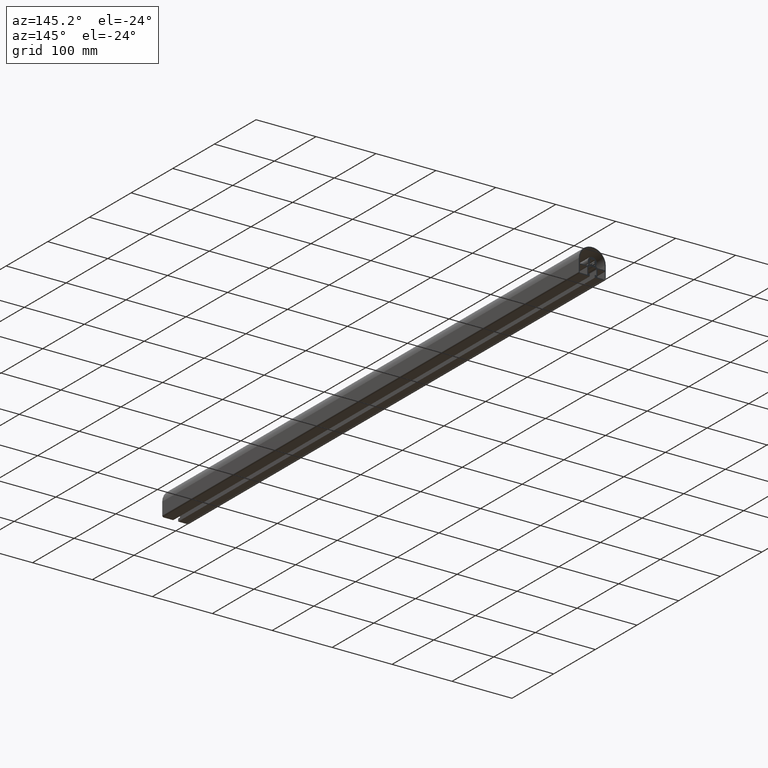
[diagram: clean part render]
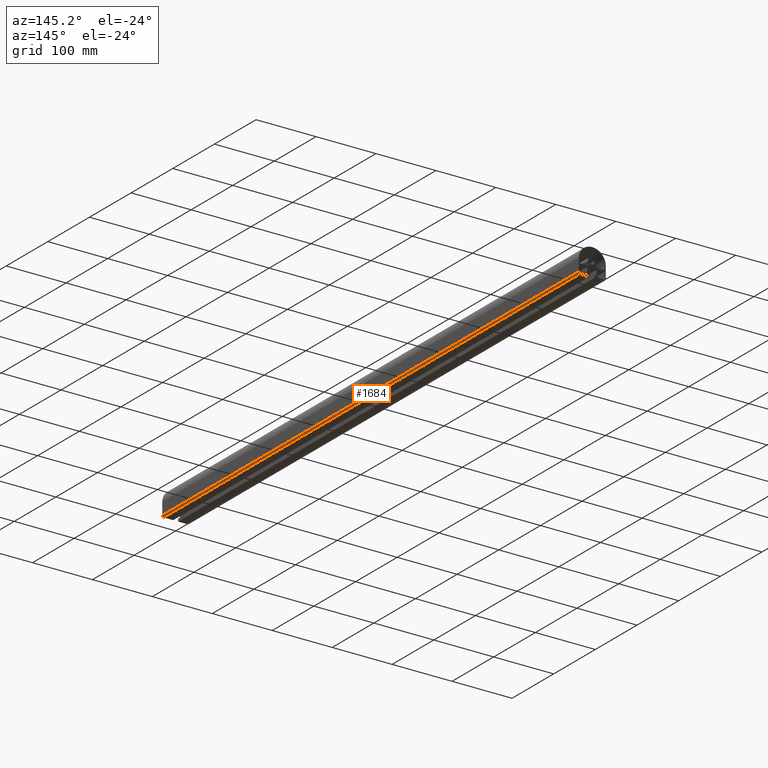
[diagram: same view with one face highlighted and labeled with its STEP entity id]
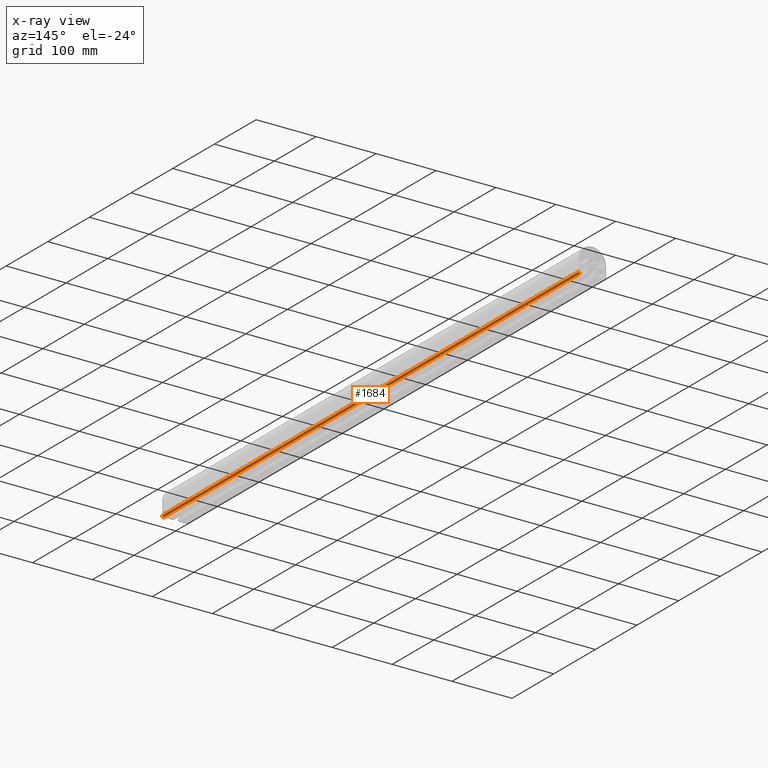
[diagram: x-ray of the same camera — body ghosted, the highlighted face saturated]
A machine part, auxiliary view. The second image highlights one B-rep face of the part: STEP entity #1684.
The next image is the same camera in x-ray: the body ghosted, the highlighted face saturated — about 0% of this face is hidden behind the body in this view.
In plain terms, the highlighted cylindrical surface (edge-blend (fillet) strip) has radius 2.5 mm, axis along (0, 1, 0).
Its self-contained STEP definition (entity closure, byte-faithful):
#142=FACE_OUTER_BOUND('',#227,.T.);
#227=EDGE_LOOP('',(#1382,#1383,#1384,#1385));
#390=LINE('',#2891,#545);
#391=LINE('',#2897,#546);
#545=VECTOR('',#2386,10.);
#546=VECTOR('',#2393,10.);
#641=CIRCLE('',#1882,2.50001172285642);
#642=CIRCLE('',#1883,2.50001172285642);
#805=VERTEX_POINT('',#2887);
#806=VERTEX_POINT('',#2889);
#807=VERTEX_POINT('',#2893);
#808=VERTEX_POINT('',#2895);
#1052=EDGE_CURVE('',#805,#806,#390,.T.);
#1053=EDGE_CURVE('',#805,#807,#641,.T.);
#1054=EDGE_CURVE('',#808,#806,#642,.T.);
#1055=EDGE_CURVE('',#807,#808,#391,.T.);
#1382=ORIENTED_EDGE('',*,*,#1053,.F.);
#1383=ORIENTED_EDGE('',*,*,#1052,.T.);
#1384=ORIENTED_EDGE('',*,*,#1054,.F.);
#1385=ORIENTED_EDGE('',*,*,#1055,.F.);
#1602=CYLINDRICAL_SURFACE('',#1881,2.50001172285642);
#1684=ADVANCED_FACE('',(#142),#1602,.T.);
#1881=AXIS2_PLACEMENT_3D('',#2892,#2387,#2388);
#1882=AXIS2_PLACEMENT_3D('',#2894,#2389,#2390);
#1883=AXIS2_PLACEMENT_3D('',#2896,#2391,#2392);
#2386=DIRECTION('',(0.,1.,0.));
#2387=DIRECTION('center_axis',(0.,1.,0.));
#2388=DIRECTION('ref_axis',(-0.999996460076769,0.,-0.00266079573277724));
#2389=DIRECTION('center_axis',(0.,-1.,0.));
#2390=DIRECTION('ref_axis',(-0.999996460076769,0.,-0.00266079573277724));
#2391=DIRECTION('center_axis',(0.,1.,0.));
#2392=DIRECTION('ref_axis',(-0.999996460076769,0.,-0.00266079573277724));
#2393=DIRECTION('',(0.,1.,0.));
#2887=CARTESIAN_POINT('',(19.9966617571842,0.,-22.4966734783322));
#2889=CARTESIAN_POINT('',(19.9966617571842,1000.,-22.4966734783322));
#2891=CARTESIAN_POINT('',(19.9966617571842,0.,-22.4966734783322));
#2892=CARTESIAN_POINT('Origin',(19.9966706070339,0.,-19.9966617554914));
#2893=CARTESIAN_POINT('',(22.4966734800407,0.,-19.9900097349673));
#2894=CARTESIAN_POINT('Origin',(19.9966706070339,0.,-19.9966617554914));
#2895=CARTESIAN_POINT('',(22.4966734800407,1000.,-19.9900097349673));
#2896=CARTESIAN_POINT('Origin',(19.9966706070339,1000.,-19.9966617554914));
#2897=CARTESIAN_POINT('',(22.4966734800407,0.,-19.9900097349673));